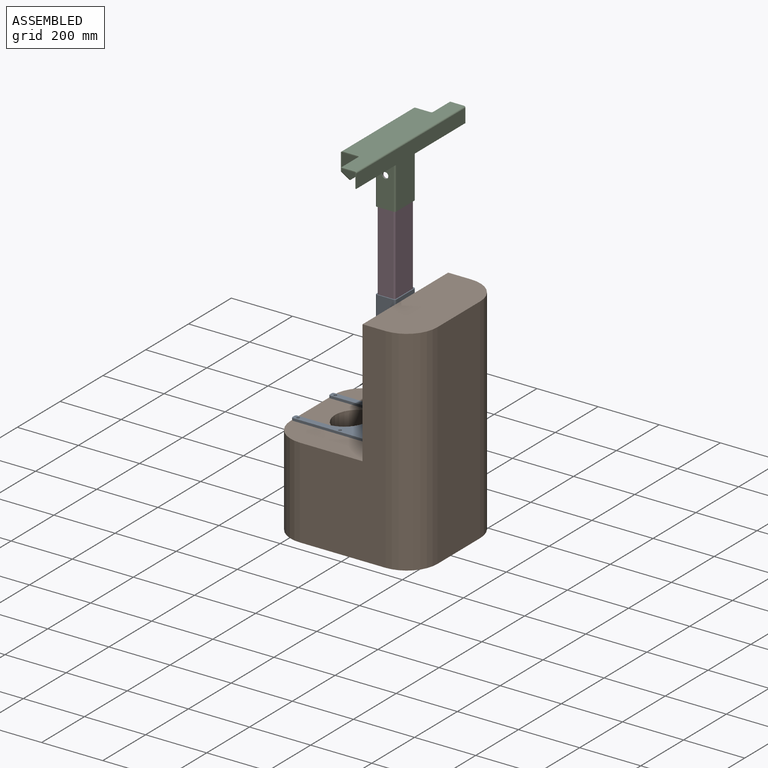
[diagram: assembled view]
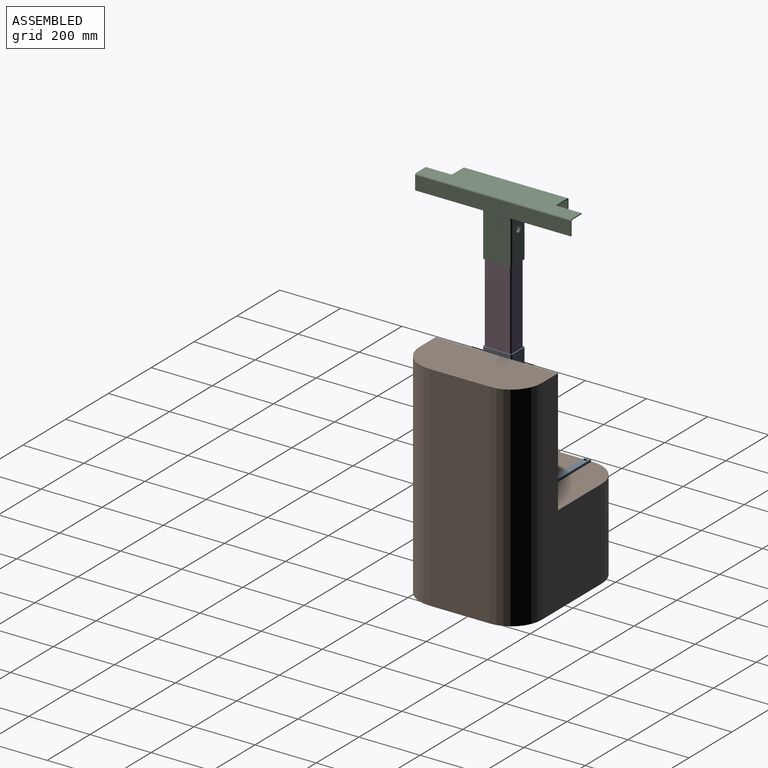
[diagram: assembled view, second angle]
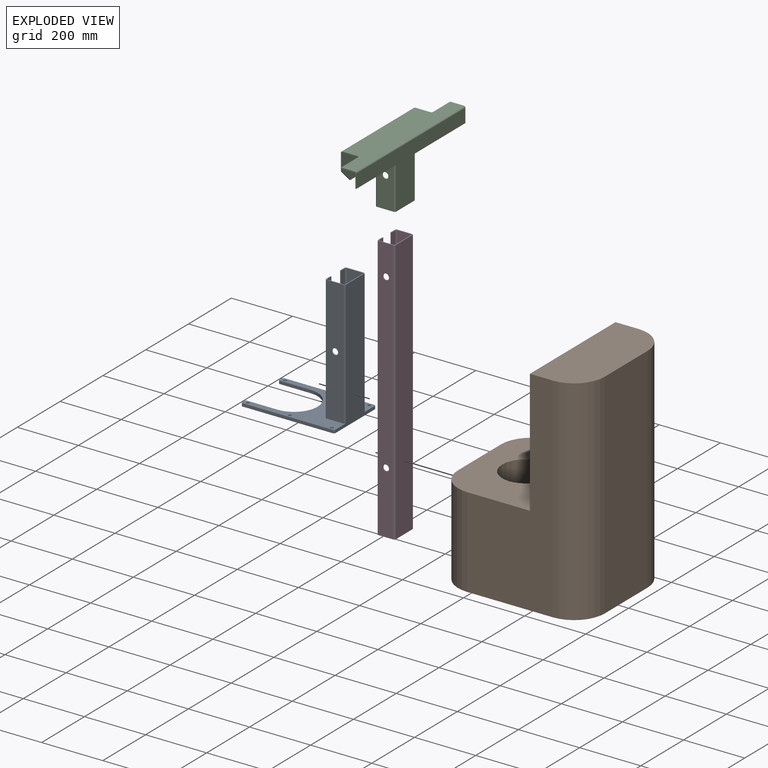
[diagram: exploded view]
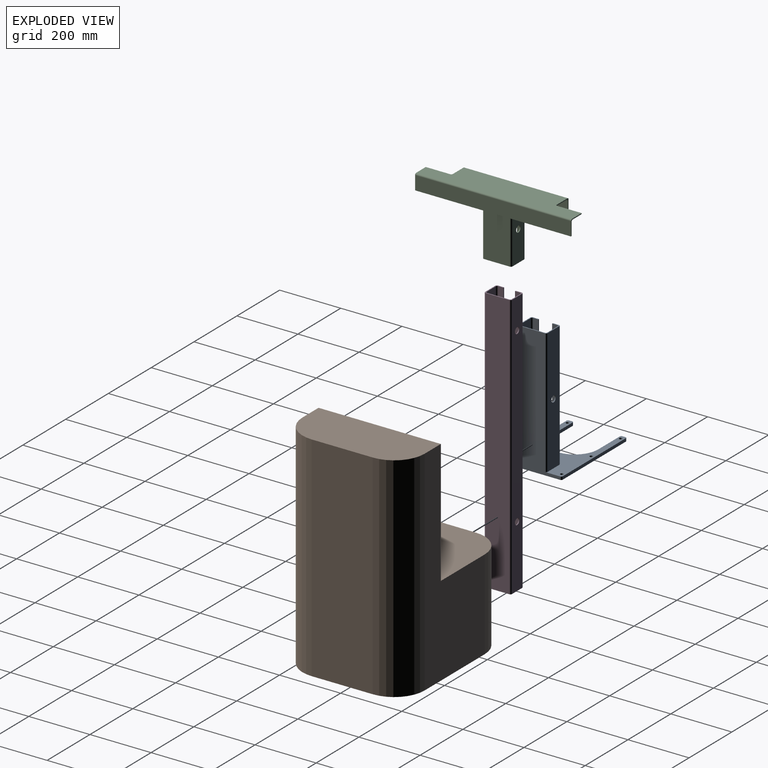
[diagram: exploded view, second angle]
ASSEMBLY  parts=4 mates=3
PART A: 44 faces, bbox 194x420x305 mm
  f0: plane 305x194mm, normal (0,1,0), area 32377.7mm2, adj f1,f2,f3,f4,f5,f6,f7,f8
  f1: plane 100.11x10mm, normal (1,0,0), area 1001.1mm2, adj f0,f2,f9,f35
  f2: cylinder r=77mm len=154mm, axis (0,1,0), area 2419mm2, adj f0,f1,f3,f9
  f3: plane 100.11x10mm, normal (-1,0,0), area 1001.1mm2, adj f0,f2,f9,f30
  f4: plane 10x10mm, normal (0,0,-1), area 100mm2, adj f0,f9,f30,f31
  f5: plane 295x10mm, normal (1,0,0), area 2950mm2, adj f0,f9,f31,f32
  f6: plane 420x184mm, normal (0,0,1), area 36690mm2, adj f0,f9,f21,f23,f24,f32,f33
  f7: plane 295x10mm, normal (-1,0,0), area 2950mm2, adj f0,f9,f33,f34
  f8: plane 10x10mm, normal (0,0,-1), area 100mm2, adj f0,f9,f34,f35
  f9: plane 305x194mm, normal (0,-1,0), area 33166.7mm2, adj f1,f2,f3,f4,f5,f6,f7,f8
  f10: plane 410x20mm, normal (0,0,-1), area 8200mm2, adj f0,f20,f21,f22
  f11: plane 410x55mm, normal (-1,0,0), area 22235.8mm2, adj f0,f21,f22,f23,f42
  f12: plane 410x55mm, normal (1,0,0), area 22235.8mm2, adj f0,f21,f24,f25,f43
  f13: plane 410x20mm, normal (0,0,-1), area 8200mm2, adj f0,f14,f21,f25
  f14: plane 410x3mm, normal (-1,0,0), area 1230mm2, adj f0,f13,f15,f21
  f15: plane 410x17mm, normal (0,0,1), area 6970mm2, adj f0,f14,f21,f26
  f16: plane 410x49mm, normal (-1,0,0), area 19775.8mm2, adj f0,f21,f26,f27,f43
  f17: plane 410x79mm, normal (0,0,-1), area 32390mm2, adj f0,f21,f27,f28
  f18: plane 410x49mm, normal (1,0,0), area 19775.8mm2, adj f0,f21,f28,f29,f42
  f19: plane 410x17mm, normal (0,0,1), area 6970mm2, adj f0,f20,f21,f29
  f20: plane 410x3mm, normal (1,0,0), area 1230mm2, adj f0,f10,f19,f21
  f21: plane 95x65mm, normal (0,1,0), area 789mm2, adj f6,f10,f11,f12,f13,f14,f15,f16
  f22: cylinder r=5mm len=410mm, axis (0,-1,0), area 3220.1mm2, adj f0,f10,f11,f21
  f23: cylinder r=5mm len=410mm, axis (0,1,0), area 3220.1mm2, adj f0,f6,f11,f21
  f24: cylinder r=5mm len=410mm, axis (0,1,0), area 3220.1mm2, adj f0,f6,f12,f21
  f25: cylinder r=5mm len=410mm, axis (0,-1,0), area 3220.1mm2, adj f0,f12,f13,f21
  f26: cylinder r=5mm len=410mm, axis (0,1,0), area 3220.1mm2, adj f0,f15,f16,f21
  f27: cylinder r=5mm len=410mm, axis (0,1,0), area 3220.1mm2, adj f0,f16,f17,f21
  f28: cylinder r=5mm len=410mm, axis (0,1,0), area 3220.1mm2, adj f0,f17,f18,f21
  f29: cylinder r=5mm len=410mm, axis (0,1,0), area 3220.1mm2, adj f0,f18,f19,f21
  f30: cylinder r=5mm len=10mm, axis (0,1,0), area 78.5mm2, adj f0,f3,f4,f9
  f31: cylinder r=5mm len=10mm, axis (0,1,0), area 78.5mm2, adj f0,f4,f5,f9
  f32: cylinder r=5mm len=10mm, axis (0,1,0), area 78.5mm2, adj f0,f5,f6,f9
  f33: cylinder r=5mm len=10mm, axis (0,1,0), area 78.5mm2, adj f0,f6,f7,f9
  f34: cylinder r=5mm len=10mm, axis (0,1,0), area 78.5mm2, adj f0,f7,f8,f9
  f35: cylinder r=5mm len=10mm, axis (0,1,0), area 78.5mm2, adj f0,f1,f8,f9
  f36: cylinder r=5mm len=10mm, axis (0,1,0), area 314.2mm2, adj f0,f9
  f37: cylinder r=5mm len=10mm, axis (0,1,0), area 314.2mm2, adj f0,f9
  f38: cylinder r=5mm len=10mm, axis (0,1,0), area 314.2mm2, adj f0,f9
  f39: cylinder r=5mm len=10mm, axis (0,1,0), area 314.2mm2, adj f0,f9
  f40: cylinder r=5mm len=10mm, axis (0,1,0), area 314.2mm2, adj f0,f9
  f41: cylinder r=5mm len=10mm, axis (0,1,0), area 314.2mm2, adj f0,f9
  f42: cylinder r=10mm len=20mm, axis (1,0,0), area 188.5mm2, adj f11,f18
  f43: cylinder r=10mm len=20mm, axis (1,0,0), area 188.5mm2, adj f12,f16
PART B: 13 faces, bbox 480x400x700 mm
  f0: plane 400x305mm, normal (0,0,1), area 99081.5mm2, adj f1,f5,f6,f7,f8,f10,f12
  f1: plane 295x200mm, normal (-1,0,0), area 59000mm2, adj f0,f2,f10,f12
  f2: plane 480x400mm, normal (0,0,-1), area 164789.4mm2, adj f1,f3,f6,f7,f8,f9,f10,f11
  f3: plane 700x200mm, normal (1,0,0), area 140000mm2, adj f2,f4,f9,f11
  f4: plane 400x175mm, normal (0,0,1), area 65708mm2, adj f3,f5,f6,f7,f9,f11
  f5: plane 405x400mm, normal (-1,0,0), area 162000mm2, adj f0,f4,f6,f7
  f6: plane 700x280mm, normal (0,-1,0), area 112975mm2, adj f0,f2,f4,f5,f11,f12
  f7: plane 700x280mm, normal (0,1,0), area 112975mm2, adj f0,f2,f4,f5,f9,f10
  f8: cylinder r=77mm len=295mm, axis (0,0,1), area 142722.6mm2, adj f0,f2
  f9: cylinder r=100mm len=700mm, axis (0,0,1), area 109955.7mm2, adj f2,f3,f4,f7
  f10: cylinder r=100mm len=295mm, axis (0,0,-1), area 46338.5mm2, adj f0,f1,f2,f7
  f11: cylinder r=100mm len=700mm, axis (0,0,-1), area 109955.7mm2, adj f2,f3,f4,f6
  f12: cylinder r=100mm len=295mm, axis (0,0,1), area 46338.5mm2, adj f0,f1,f2,f6
PART C: 45 faces, bbox 110x510x203 mm
  f0: plane 510x94mm, normal (0,0,-1), area 38321.7mm2, adj f1,f9,f12,f13,f14,f15,f16,f17
  f1: plane 60x55mm, normal (0,-1,0), area 336mm2, adj f0,f2,f4,f5,f11,f17,f18,f21
  f2: plane 340x92mm, normal (-1,0,0), area 29680mm2, adj f1,f3,f9,f10,f11,f21
  f3: plane 260x3mm, normal (0,0,-1), area 780mm2, adj f2,f4,f10,f11
  f4: plane 340x95mm, normal (1,0,0), area 30700mm2, adj f1,f3,f9,f10,f11,f18
  f5: plane 510x100mm, normal (0,0,1), area 41660.7mm2, adj f1,f9,f12,f13,f14,f15,f16,f17
  f6: plane 510x45mm, normal (-1,0,0), area 22950mm2, adj f7,f13,f15,f19
  f7: plane 510x3mm, normal (0,0,-1), area 1530mm2, adj f6,f8,f13,f15
  f8: plane 510x42mm, normal (1,0,0), area 21420mm2, adj f7,f13,f15,f20
  f9: plane 60x55mm, normal (0,1,0), area 336mm2, adj f0,f2,f4,f5,f10,f16,f18,f21
  f10: plane 40x40mm, normal (0,0.71,-0.71), area 169.7mm2, adj f2,f3,f4,f9
  f11: plane 40x40mm, normal (0,-0.71,-0.71), area 169.7mm2, adj f1,f2,f3,f4
  f12: plane 80x3mm, normal (1,0,0), area 240mm2, adj f0,f5,f13,f17
  f13: plane 50x50mm, normal (0,-1,0), area 291mm2, adj f0,f5,f6,f7,f8,f12,f19,f20
  f14: plane 80x3mm, normal (1,0,0), area 240mm2, adj f0,f5,f15,f16
  f15: plane 50x50mm, normal (0,1,0), area 291mm2, adj f0,f5,f6,f7,f8,f14,f19,f20
  f16: cylinder r=5mm len=5mm, axis (0,0,1), area 23.6mm2, adj f0,f5,f9,f14
  f17: cylinder r=5mm len=5mm, axis (0,0,1), area 23.6mm2, adj f0,f1,f5,f12
  f18: cylinder r=5mm len=340mm, axis (0,1,0), area 2670.4mm2, adj f1,f4,f5,f9
  f19: cylinder r=5mm len=510mm, axis (0,1,0), area 4005.5mm2, adj f5,f6,f13,f15
  f20: cylinder r=5mm len=510mm, axis (0,-1,0), area 4005.5mm2, adj f0,f8,f13,f15
  f21: cylinder r=5mm len=340mm, axis (0,-1,0), area 2670.4mm2, adj f0,f1,f2,f9
  f22: plane 200x20mm, normal (1,0,0), area 4000mm2, adj f0,f33,f34,f35
  f23: plane 200x55mm, normal (0,-1,0), area 10685.8mm2, adj f0,f34,f35,f36,f43
  f24: plane 200x85mm, normal (-1,0,0), area 17000mm2, adj f0,f34,f36,f37
  f25: plane 200x55mm, normal (0,1,0), area 10685.8mm2, adj f0,f34,f37,f38,f44
  f26: plane 200x20mm, normal (1,0,0), area 4000mm2, adj f0,f27,f34,f38
  f27: plane 200x3mm, normal (0,-1,0), area 600mm2, adj f0,f26,f28,f34
  f28: plane 200x17mm, normal (-1,0,0), area 3400mm2, adj f0,f27,f34,f39
  f29: plane 200x49mm, normal (0,-1,0), area 9485.8mm2, adj f0,f34,f39,f40,f44
  f30: plane 200x79mm, normal (1,0,0), area 15800mm2, adj f0,f34,f40,f41
  f31: plane 200x49mm, normal (0,1,0), area 9485.8mm2, adj f0,f34,f41,f42,f43
  f32: plane 200x17mm, normal (-1,0,0), area 3400mm2, adj f0,f33,f34,f42
  f33: plane 200x3mm, normal (0,1,0), area 600mm2, adj f0,f22,f32,f34
  f34: plane 95x65mm, normal (0,0,-1), area 789mm2, adj f22,f23,f24,f25,f26,f27,f28,f29
  f35: cylinder r=5mm len=200mm, axis (0,0,1), area 1570.8mm2, adj f0,f22,f23,f34
  f36: cylinder r=5mm len=200mm, axis (0,0,1), area 1570.8mm2, adj f0,f23,f24,f34
  f37: cylinder r=5mm len=200mm, axis (0,0,1), area 1570.8mm2, adj f0,f24,f25,f34
  f38: cylinder r=5mm len=200mm, axis (0,0,1), area 1570.8mm2, adj f0,f25,f26,f34
  f39: cylinder r=5mm len=200mm, axis (0,0,-1), area 1570.8mm2, adj f0,f28,f29,f34
  f40: cylinder r=5mm len=200mm, axis (0,0,-1), area 1570.8mm2, adj f0,f29,f30,f34
  f41: cylinder r=5mm len=200mm, axis (0,0,-1), area 1570.8mm2, adj f0,f30,f31,f34
  f42: cylinder r=5mm len=200mm, axis (0,0,-1), area 1570.8mm2, adj f0,f31,f32,f34
  f43: cylinder r=10mm len=20mm, axis (0,-1,0), area 188.5mm2, adj f23,f31
  f44: cylinder r=10mm len=20mm, axis (0,-1,0), area 188.5mm2, adj f25,f29
PART D: 26 faces, bbox 88x870x58 mm
  f0: plane 870x3mm, normal (1,0,0), area 2610mm2, adj f1,f11,f12,f13
  f1: plane 870x17mm, normal (0,0,1), area 14790mm2, adj f0,f12,f13,f18
  f2: plane 870x42mm, normal (1,0,0), area 35911.7mm2, adj f12,f13,f18,f19,f22,f23
  f3: plane 870x72mm, normal (0,0,-1), area 62640mm2, adj f12,f13,f19,f20
  f4: plane 870x42mm, normal (-1,0,0), area 35911.7mm2, adj f12,f13,f20,f21,f24,f25
  f5: plane 870x17mm, normal (0,0,1), area 14790mm2, adj f6,f12,f13,f21
  f6: plane 870x3mm, normal (-1,0,0), area 2610mm2, adj f5,f7,f12,f13
  f7: plane 870x20mm, normal (0,0,-1), area 17400mm2, adj f6,f12,f13,f14
  f8: plane 870x48mm, normal (1,0,0), area 41131.7mm2, adj f12,f13,f14,f15,f24,f25
  f9: plane 870x78mm, normal (0,0,1), area 67860mm2, adj f12,f13,f15,f16
  f10: plane 870x48mm, normal (-1,0,0), area 41131.7mm2, adj f12,f13,f16,f17,f22,f23
  f11: plane 870x20mm, normal (0,0,-1), area 17400mm2, adj f0,f12,f13,f17
  f12: plane 88x58mm, normal (0,-1,0), area 726mm2, adj f0,f1,f2,f3,f4,f5,f6,f7
  f13: plane 88x58mm, normal (0,1,0), area 726mm2, adj f0,f1,f2,f3,f4,f5,f6,f7
  f14: cylinder r=5mm len=870mm, axis (0,1,0), area 6833mm2, adj f7,f8,f12,f13
  f15: cylinder r=5mm len=870mm, axis (0,1,0), area 6833mm2, adj f8,f9,f12,f13
  f16: cylinder r=5mm len=870mm, axis (0,1,0), area 6833mm2, adj f9,f10,f12,f13
  f17: cylinder r=5mm len=870mm, axis (0,1,0), area 6833mm2, adj f10,f11,f12,f13
  f18: cylinder r=5mm len=870mm, axis (0,-1,0), area 6833mm2, adj f1,f2,f12,f13
  f19: cylinder r=5mm len=870mm, axis (0,-1,0), area 6833mm2, adj f2,f3,f12,f13
  f20: cylinder r=5mm len=870mm, axis (0,-1,0), area 6833mm2, adj f3,f4,f12,f13
  f21: cylinder r=5mm len=870mm, axis (0,-1,0), area 6833mm2, adj f4,f5,f12,f13
  f22: cylinder r=10mm len=20mm, axis (1,0,0), area 188.5mm2, adj f2,f10
  f23: cylinder r=10mm len=20mm, axis (1,0,0), area 188.5mm2, adj f2,f10
  f24: cylinder r=10mm len=20mm, axis (1,0,0), area 188.5mm2, adj f4,f8
  f25: cylinder r=10mm len=20mm, axis (1,0,0), area 188.5mm2, adj f4,f8
PLACE A rot(axis=(0.58,0.58,0.58),120deg) t=(-113.04,-197.2,168.58)mm
PLACE B at identity fixed
PLACE C rot(axis=(0,0,-1),180deg) t=(40.2,-200,1010.31)mm
PLACE D rot(axis=(0.58,0.58,0.58),120deg) t=(46.22,-206.75,1038.58)mm
MATE fastened A.f42 <-> D.f23  axis (0,1,0) through (37.26,-244.5,373.58)mm
MATE fastened D.f22 <-> C.f43  axis (0,-1,0) through (37.26,-244.5,938.58)mm
MATE fastened A.f6 <-> B.f5  axis (1,0,0) through (69.76,-200,363.04)mm
